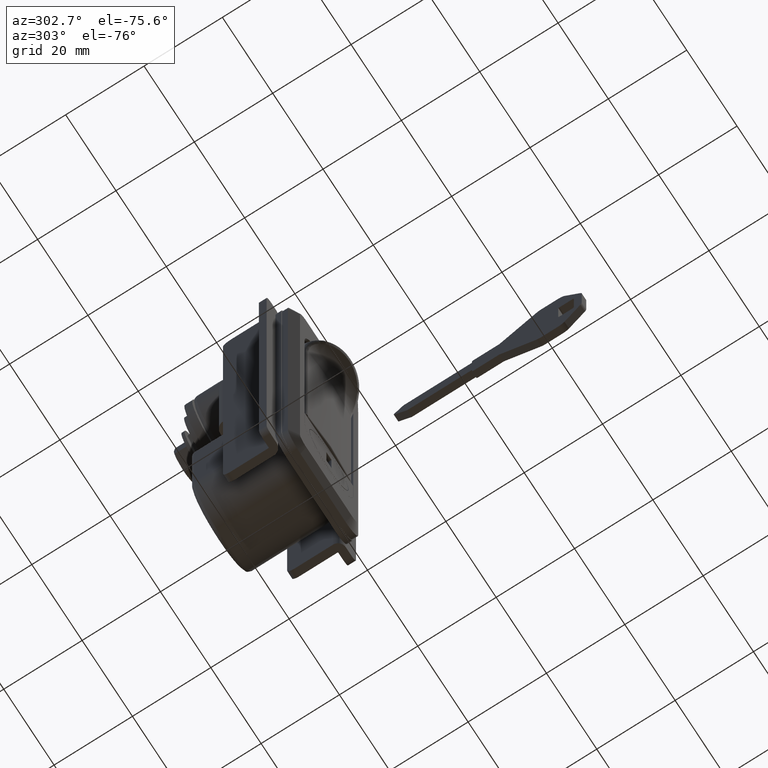
[diagram: clean part render]
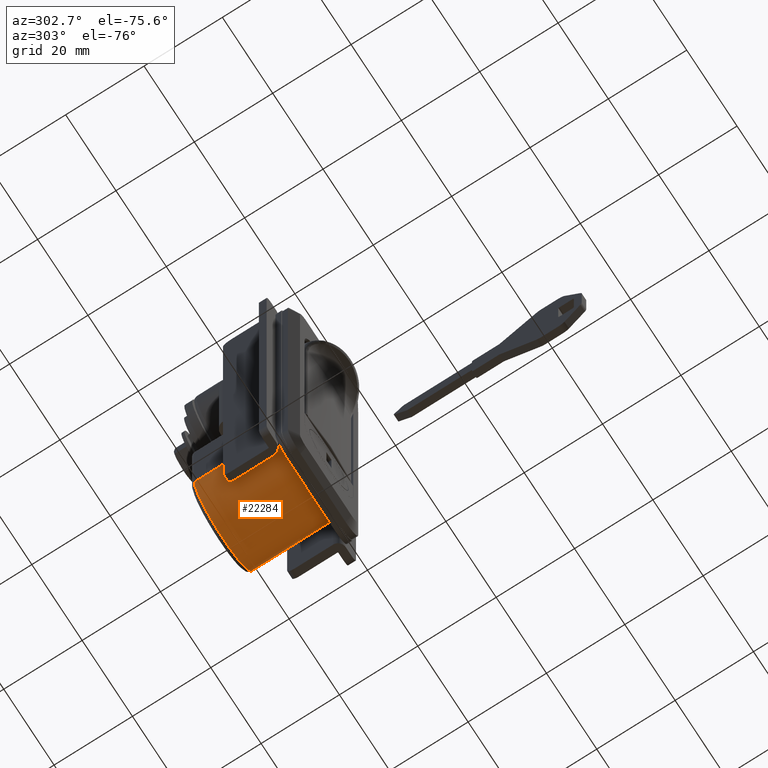
[diagram: same view with one face highlighted and labeled with its STEP entity id]
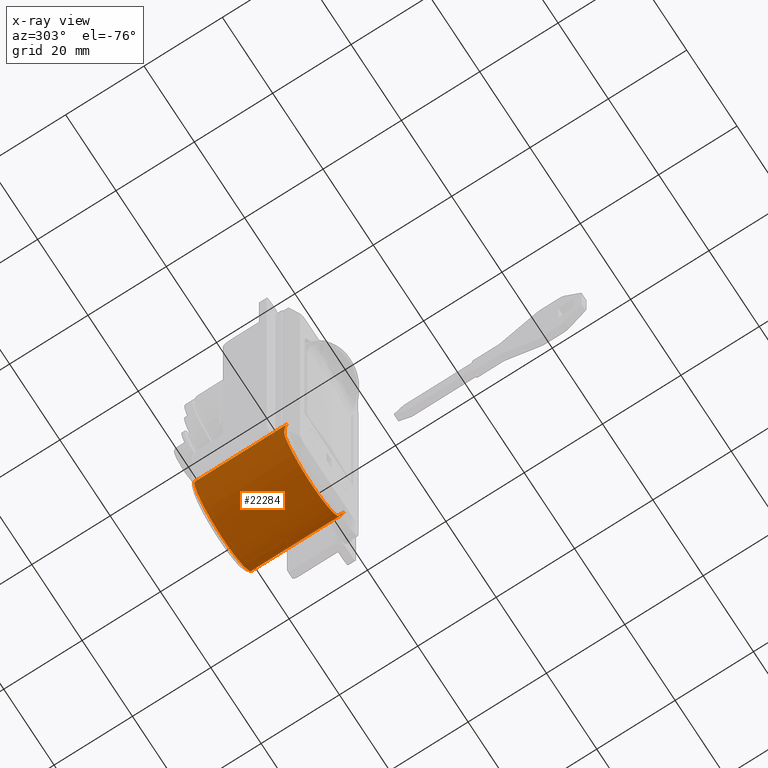
[diagram: x-ray of the same camera — body ghosted, the highlighted face saturated]
A machine part, auxiliary view. The second image highlights one B-rep face of the part: STEP entity #22284.
The next image is the same camera in x-ray: the body ghosted, the highlighted face saturated — about 1% of this face is hidden behind the body in this view.
In plain terms, the highlighted face is a freeform B-spline surface patch.
Its self-contained STEP definition (entity closure, byte-faithful):
#17109=CARTESIAN_POINT('',(24.0,11.500000000000121,-72.0));
#17110=VERTEX_POINT('',#17109);
#17219=CARTESIAN_POINT('',(24.0,-11.500000000000000,-72.0));
#17220=VERTEX_POINT('',#17219);
#17234=CARTESIAN_POINT('',(24.0,11.500000000000000,-72.0));
#17235=CARTESIAN_POINT('',(23.999999999999996,11.500000000000000,-83.499999999999986));
#17236=CARTESIAN_POINT('',(24.0,0.0,-83.499999999999986));
#17237=CARTESIAN_POINT('',(23.999999999999996,-11.500000000000000,-83.499999999999986));
#17238=CARTESIAN_POINT('',(24.0,-11.500000000000000,-72.0));
#17246=(BOUNDED_CURVE()B_SPLINE_CURVE(2,(#17234,#17235,#17236,#17237,#17238),.UNSPECIFIED.,.F.,.U.)B_SPLINE_CURVE_WITH_KNOTS((3,2,3),(0.0,0.500000000000000,1.0),.UNSPECIFIED.)CURVE()GEOMETRIC_REPRESENTATION_ITEM()RATIONAL_B_SPLINE_CURVE((1.0,0.707106781186548,1.0,0.707106781186548,1.0))REPRESENTATION_ITEM(''));
#17247=EDGE_CURVE('',#17110,#17220,#17246,.T.);
#19172=CARTESIAN_POINT('',(1.499999999999946,-4.690415759823411,-82.500000000000000));
#19173=VERTEX_POINT('',#19172);
#19215=CARTESIAN_POINT('',(0.499999999999945,-11.500000000000000,-72.0));
#19216=VERTEX_POINT('',#19215);
#19217=CARTESIAN_POINT('',(1.499999999999946,-10.500000000000000,-76.690415759823608));
#19218=VERTEX_POINT('',#19217);
#19219=CARTESIAN_POINT('',(0.499999999999945,-11.500000000000000,-72.0));
#19220=CARTESIAN_POINT('',(0.514552194099794,-11.500000000000000,-72.049349098598739));
#19221=CARTESIAN_POINT('',(0.529241510177621,-11.499679414453270,-72.099162776234479));
#19222=CARTESIAN_POINT('',(0.558470674062684,-11.498396303014861,-72.198349061517533));
#19223=CARTESIAN_POINT('',(0.602255003396364,-11.495510255699189,-72.347025155193649));
#19224=CARTESIAN_POINT('',(0.645781568037494,-11.489750047008499,-72.495413966688332));
#19225=CARTESIAN_POINT('',(0.732277269183717,-11.474411080987791,-72.791867987098613));
#19226=CARTESIAN_POINT('',(0.789201280699574,-11.459098346714111,-72.989072175396970));
#19227=CARTESIAN_POINT('',(0.955967405314564,-11.397842860974450,-73.579864825792228));
#19228=CARTESIAN_POINT('',(1.061962623284148,-11.336674203456250,-73.972601762261149));
#19229=CARTESIAN_POINT('',(1.180536602457926,-11.233388737136419,-74.463952355893554));
#19230=CARTESIAN_POINT('',(1.203542885085937,-11.211383167135800,-74.562246426042449));
#19231=CARTESIAN_POINT('',(1.247887405923820,-11.164607425251740,-74.758941881975247));
#19232=CARTESIAN_POINT('',(1.269239603087232,-11.139813386983310,-74.857420431964641));
#19233=CARTESIAN_POINT('',(1.330048187157058,-11.061589668240931,-75.151572512056930));
#19234=CARTESIAN_POINT('',(1.366392894892822,-11.004225205722040,-75.346413239475808));
#19235=CARTESIAN_POINT('',(1.428081584252054,-10.878872378748291,-75.733843825670093));
#19236=CARTESIAN_POINT('',(1.453453825861513,-10.810886542966070,-75.926430909640573));
#19237=CARTESIAN_POINT('',(1.489376017382781,-10.663889404401671,-76.309708842109387));
#19238=CARTESIAN_POINT('',(1.500000000000000,-10.584884630133510,-76.500392388327143));
#19239=CARTESIAN_POINT('',(1.500000000000000,-10.500000000000000,-76.690415759823608));
#19240=B_SPLINE_CURVE_WITH_KNOTS('',3,(#19219,#19220,#19221,#19222,#19223,#19224,#19225,#19226,#19227,#19228,#19229,#19230,#19231,#19232,#19233,#19234,#19235,#19236,#19237,#19238,#19239),.UNSPECIFIED.,.F.,.U.,(4,2,1,2,2,2,2,2,2,2,4),(0.0,0.031250000000004,0.062500000000007,0.125000000000006,0.250000000000004,0.500000000000000,0.562500000000003,0.625000000000006,0.750000000000004,0.875000000000002,1.0),.UNSPECIFIED.);
#19241=EDGE_CURVE('',#19216,#19218,#19240,.T.);
#19289=CARTESIAN_POINT('',(1.499999999999946,0.0,-83.500000000000000));
#19290=VERTEX_POINT('',#19289);
#19313=CARTESIAN_POINT('',(1.499999999999946,0.0,-83.499999999999986));
#19314=CARTESIAN_POINT('',(1.499999999999946,-2.451808238089511,-83.499999999999986));
#19315=CARTESIAN_POINT('',(1.499999999999946,-4.690415759823413,-82.500000000000000));
#19323=(BOUNDED_CURVE()B_SPLINE_CURVE(2,(#19313,#19314,#19315),.UNSPECIFIED.,.F.,.U.)CURVE()GEOMETRIC_REPRESENTATION_ITEM()QUASI_UNIFORM_CURVE()RATIONAL_B_SPLINE_CURVE((1.0,0.978019293843652,1.0))REPRESENTATION_ITEM(''));
#19324=EDGE_CURVE('',#19290,#19173,#19323,.T.);
#19344=CARTESIAN_POINT('',(1.499999999999946,10.500000000000000,-76.690415759823111));
#19345=VERTEX_POINT('',#19344);
#19346=CARTESIAN_POINT('',(0.499999999999945,11.500000000000121,-72.0));
#19347=VERTEX_POINT('',#19346);
#19348=CARTESIAN_POINT('',(1.500000000000000,10.500000000000000,-76.690415759823111));
#19349=CARTESIAN_POINT('',(1.500000000000000,10.584884630133480,-76.500392388326702));
#19350=CARTESIAN_POINT('',(1.489376017382757,10.663889404401800,-76.309708842109046));
#19351=CARTESIAN_POINT('',(1.453453825861486,10.810886542966150,-75.926430909640359));
#19352=CARTESIAN_POINT('',(1.428081584252033,10.878872378748341,-75.733843825669950));
#19353=CARTESIAN_POINT('',(1.366392894892812,11.004225205722051,-75.346413239475780));
#19354=CARTESIAN_POINT('',(1.330048187157056,11.061589668240931,-75.151572512056930));
#19355=CARTESIAN_POINT('',(1.269239603087249,11.139813386983290,-74.857420431964741));
#19356=CARTESIAN_POINT('',(1.247887405923847,11.164607425251710,-74.758941881975389));
#19357=CARTESIAN_POINT('',(1.203542885085973,11.211383167135770,-74.562246426042591));
#19358=CARTESIAN_POINT('',(1.180536602457969,11.233388737136380,-74.463952355893710));
#19359=CARTESIAN_POINT('',(1.061962623284195,11.336674203456210,-73.972601762261334));
#19360=CARTESIAN_POINT('',(0.955967405314575,11.397842860974460,-73.579864825792299));
#19361=CARTESIAN_POINT('',(0.789201280699504,11.459098346714130,-72.989072175396757));
#19362=CARTESIAN_POINT('',(0.732277269183632,11.474411080987821,-72.791867987098286));
#19363=CARTESIAN_POINT('',(0.645781568037362,11.489750047008521,-72.495413966687863));
#19364=CARTESIAN_POINT('',(0.602255003396191,11.495510255699211,-72.347025155193066));
#19365=CARTESIAN_POINT('',(0.558470674062488,11.498396303014880,-72.198349061516836));
#19366=CARTESIAN_POINT('',(0.529241510177415,11.499679414453270,-72.099162776233740));
#19367=CARTESIAN_POINT('',(0.514552194182110,11.500000000000011,-72.049349098574496));
#19368=CARTESIAN_POINT('',(0.499999999999945,11.500000000000000,-72.0));
#19369=B_SPLINE_CURVE_WITH_KNOTS('',3,(#19348,#19349,#19350,#19351,#19352,#19353,#19354,#19355,#19356,#19357,#19358,#19359,#19360,#19361,#19362,#19363,#19364,#19365,#19366,#19367,#19368),.UNSPECIFIED.,.F.,.U.,(4,2,2,2,2,2,2,2,1,2,4),(0.0,0.124999999999991,0.249999999999983,0.374999999999974,0.437499999999973,0.499999999999973,0.749999999999986,0.874999999999997,0.937500000000003,0.968750000000001,1.0),.UNSPECIFIED.);
#19370=EDGE_CURVE('',#19345,#19347,#19369,.T.);
#19484=CARTESIAN_POINT('',(1.499999999999946,4.690415759823400,-82.500000000000000));
#19485=VERTEX_POINT('',#19484);
#19563=CARTESIAN_POINT('',(1.499999999999946,4.690415759823407,-82.500000000000000));
#19564=CARTESIAN_POINT('',(1.499999999999946,2.451808238089509,-83.499999999999972));
#19565=CARTESIAN_POINT('',(1.499999999999946,0.0,-83.499999999999986));
#19573=(BOUNDED_CURVE()B_SPLINE_CURVE(2,(#19563,#19564,#19565),.UNSPECIFIED.,.F.,.U.)CURVE()GEOMETRIC_REPRESENTATION_ITEM()QUASI_UNIFORM_CURVE()RATIONAL_B_SPLINE_CURVE((1.0,0.978019293843651,1.0))REPRESENTATION_ITEM(''));
#19574=EDGE_CURVE('',#19485,#19290,#19573,.T.);
#22223=CARTESIAN_POINT('',(24.587500000000009,-11.495679493557050,-71.684796920364207));
#22224=CARTESIAN_POINT('',(-0.102187500000057,-11.495679493557050,-71.684796920364207));
#22225=CARTESIAN_POINT('',(24.587500000000006,-11.824944926154807,-83.693340383279789));
#22226=CARTESIAN_POINT('',(-0.102187500000057,-11.824944926154807,-83.693340383279789));
#22227=CARTESIAN_POINT('',(24.587500000000009,0.186531420709947,-83.498487119142581));
#22228=CARTESIAN_POINT('',(-0.102187500000057,0.186531420709947,-83.498487119142581));
#22229=CARTESIAN_POINT('',(24.587500000000006,12.198007767574707,-83.303633855005387));
#22230=CARTESIAN_POINT('',(-0.102187500000057,12.198007767574707,-83.303633855005387));
#22231=CARTESIAN_POINT('',(24.587500000000009,11.479406720965541,-71.312089152105386));
#22232=CARTESIAN_POINT('',(-0.102187500000057,11.479406720965541,-71.312089152105386));
#22240=(BOUNDED_SURFACE()B_SPLINE_SURFACE(1,2,((#22223,#22225,#22227,#22229,#22231),(#22224,#22226,#22228,#22230,#22232)),.UNSPECIFIED.,.F.,.F.,.U.)B_SPLINE_SURFACE_WITH_KNOTS((2,2),(3,2,3),(0.0,24.689687500000058),(0.0,19.644390057268321,39.288780114536642),.UNSPECIFIED.)GEOMETRIC_REPRESENTATION_ITEM()RATIONAL_B_SPLINE_SURFACE(((1.0,0.691513055782269,1.0,0.691513055782269,1.0),(1.0,0.691513055782269,1.0,0.691513055782269,1.0)))REPRESENTATION_ITEM('')SURFACE());
#22241=CARTESIAN_POINT('',(24.0,11.500000000000121,-72.0));
#22242=CARTESIAN_POINT('',(0.499999999999945,11.500000000000121,-72.0));
#22243=QUASI_UNIFORM_CURVE('',1,(#22241,#22242),.UNSPECIFIED.,.F.,.U.);
#22244=EDGE_CURVE('',#17110,#19347,#22243,.T.);
#22245=ORIENTED_EDGE('',*,*,#22244,.F.);
#22246=ORIENTED_EDGE('',*,*,#17247,.T.);
#22247=CARTESIAN_POINT('',(24.0,-11.500000000000000,-72.0));
#22248=CARTESIAN_POINT('',(0.499999999999945,-11.500000000000000,-72.0));
#22249=QUASI_UNIFORM_CURVE('',1,(#22247,#22248),.UNSPECIFIED.,.F.,.U.);
#22250=EDGE_CURVE('',#17220,#19216,#22249,.T.);
#22251=ORIENTED_EDGE('',*,*,#22250,.T.);
#22252=ORIENTED_EDGE('',*,*,#19241,.T.);
#22253=CARTESIAN_POINT('',(1.499999999999946,-4.690415759823413,-82.500000000000000));
#22254=CARTESIAN_POINT('',(1.499999999999947,-8.706147487403323,-80.706147487403456));
#22255=CARTESIAN_POINT('',(1.499999999999946,-10.499999999999931,-76.690415759823580));
#22263=(BOUNDED_CURVE()B_SPLINE_CURVE(2,(#22253,#22254,#22255),.UNSPECIFIED.,.F.,.U.)CURVE()GEOMETRIC_REPRESENTATION_ITEM()QUASI_UNIFORM_CURVE()RATIONAL_B_SPLINE_CURVE((1.0,0.934021390679493,1.0))REPRESENTATION_ITEM(''));
#22264=EDGE_CURVE('',#19173,#19218,#22263,.T.);
#22265=ORIENTED_EDGE('',*,*,#22264,.F.);
#22266=ORIENTED_EDGE('',*,*,#19324,.F.);
#22267=ORIENTED_EDGE('',*,*,#19574,.F.);
#22268=CARTESIAN_POINT('',(1.499999999999946,10.500000000000121,-76.690415759823168));
#22269=CARTESIAN_POINT('',(1.499999999999946,8.706147487403563,-80.706147487403356));
#22270=CARTESIAN_POINT('',(1.499999999999946,4.690415759823407,-82.500000000000000));
#22278=(BOUNDED_CURVE()B_SPLINE_CURVE(2,(#22268,#22269,#22270),.UNSPECIFIED.,.F.,.U.)CURVE()GEOMETRIC_REPRESENTATION_ITEM()QUASI_UNIFORM_CURVE()RATIONAL_B_SPLINE_CURVE((1.0,0.934021390679486,1.0))REPRESENTATION_ITEM(''));
#22279=EDGE_CURVE('',#19345,#19485,#22278,.T.);
#22280=ORIENTED_EDGE('',*,*,#22279,.F.);
#22281=ORIENTED_EDGE('',*,*,#19370,.T.);
#22282=EDGE_LOOP('',(#22245,#22246,#22251,#22252,#22265,#22266,#22267,#22280,#22281));
#22283=FACE_OUTER_BOUND('',#22282,.T.);
#22284=ADVANCED_FACE('',(#22283),#22240,.T.);